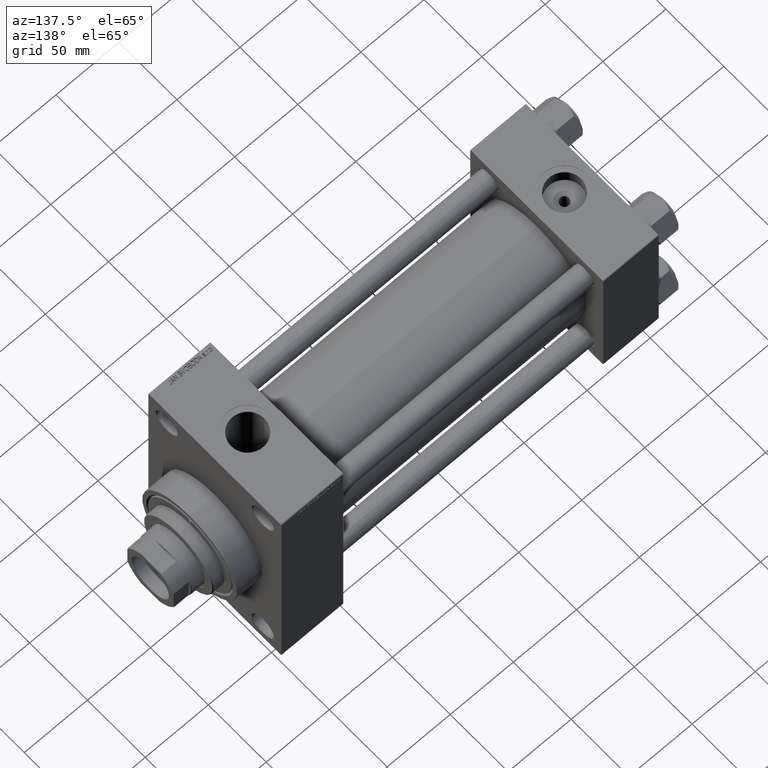
[diagram: clean part render]
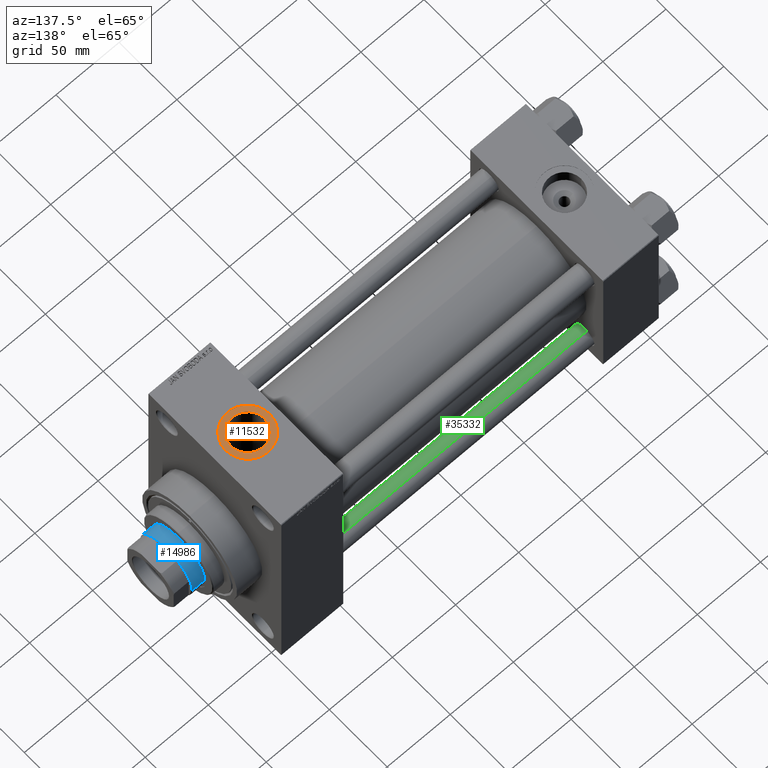
[diagram: same view with three faces highlighted in distinct colors, each labeled with its STEP entity id]
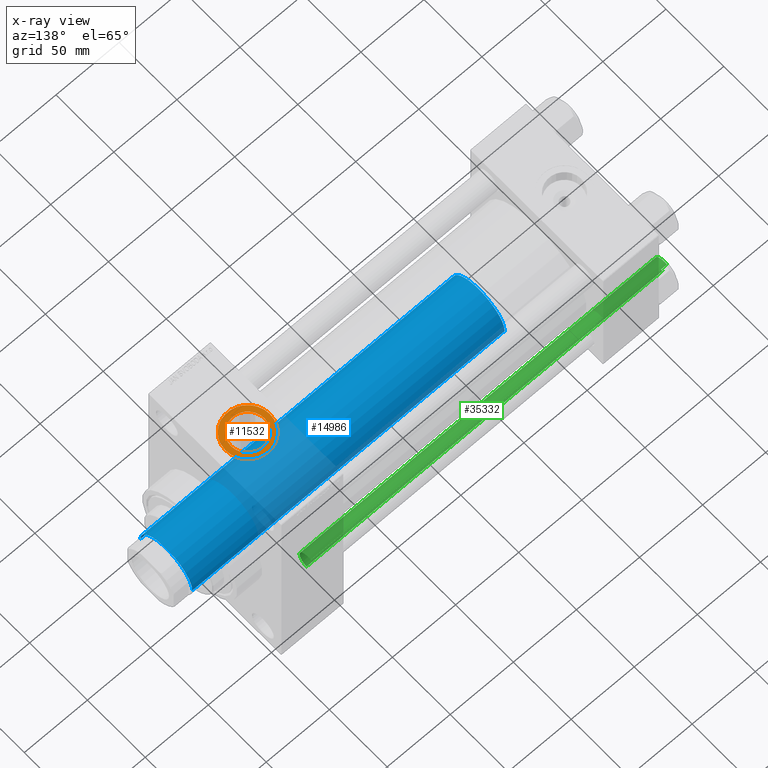
[diagram: x-ray of the same camera — body ghosted, the three highlighted faces saturated]
A machine part, auxiliary view with three faces highlighted in distinct colors.
The next image is the same camera in x-ray (body ghosted, the three faces saturated) — at least one of them is partly hidden behind the body in this view.
Their STEP definitions:

[orange] entity #11532 — the highlighted planar face has unit normal (0, 0, 1).
#292 = EDGE_LOOP ( 'NONE', ( #44141, #22670 ) ) ;
#1193 = CIRCLE ( 'NONE', #29034, 17.50000000000001421 ) ;
#3209 = CIRCLE ( 'NONE', #40320, 17.50000000000001421 ) ;
#7249 = VERTEX_POINT ( 'NONE', #35344 ) ;
#7829 = DIRECTION ( 'NONE',  ( 0.000000000000000000, 0.000000000000000000, 1.000000000000000000 ) ) ;
#9356 = AXIS2_PLACEMENT_3D ( 'NONE', #24749, #35164, #12895 ) ;
#9921 = AXIS2_PLACEMENT_3D ( 'NONE', #40812, #29683, #14652 ) ;
#10519 = CIRCLE ( 'NONE', #16692, 13.22000000000000952 ) ;
#11532 = ADVANCED_FACE ( 'NONE', ( #29446, #18757 ), #30402, .T. ) ;
#12895 = DIRECTION ( 'NONE',  ( 1.000000000000000000, 0.000000000000000000, 0.000000000000000000 ) ) ;
#13533 = CARTESIAN_POINT ( 'NONE',  ( 290.5000000000000568, -1.086087741481131350E-14, 89.79999999999998295 ) ) ;
#14652 = DIRECTION ( 'NONE',  ( 1.000000000000000000, 0.000000000000000000, -0.000000000000000000 ) ) ;
#16692 = AXIS2_PLACEMENT_3D ( 'NONE', #44874, #21879, #43917 ) ;
#18757 = FACE_OUTER_BOUND ( 'NONE', #292, .T. ) ;
#18960 = CARTESIAN_POINT ( 'NONE',  ( 259.7800000000000296, -1.086087741481131350E-14, 89.79999999999998295 ) ) ;
#20953 = DIRECTION ( 'NONE',  ( 0.000000000000000000, 0.000000000000000000, 1.000000000000000000 ) ) ;
#21879 = DIRECTION ( 'NONE',  ( -0.000000000000000000, -0.000000000000000000, -1.000000000000000000 ) ) ;
#22670 = ORIENTED_EDGE ( 'NONE', *, *, #43777, .T. ) ;
#22798 = VERTEX_POINT ( 'NONE', #44673 ) ;
#23872 = EDGE_CURVE ( 'NONE', #38009, #22798, #3209, .T. ) ;
#24749 = CARTESIAN_POINT ( 'NONE',  ( 273.0000000000000000, -1.086087741481131350E-14, 89.79999999999998295 ) ) ;
#25646 = EDGE_CURVE ( 'NONE', #45391, #7249, #30323, .T. ) ;
#27897 = DIRECTION ( 'NONE',  ( 1.000000000000000000, 0.000000000000000000, 0.000000000000000000 ) ) ;
#29034 = AXIS2_PLACEMENT_3D ( 'NONE', #39364, #20953, #38885 ) ;
#29446 = FACE_BOUND ( 'NONE', #38754, .T. ) ;
#29683 = DIRECTION ( 'NONE',  ( 0.000000000000000000, 0.000000000000000000, 1.000000000000000000 ) ) ;
#30323 = CIRCLE ( 'NONE', #9356, 13.22000000000000952 ) ;
#30402 = PLANE ( 'NONE',  #9921 ) ;
#30805 = ORIENTED_EDGE ( 'NONE', *, *, #25646, .T. ) ;
#31098 = ORIENTED_EDGE ( 'NONE', *, *, #37572, .T. ) ;
#35164 = DIRECTION ( 'NONE',  ( -0.000000000000000000, -0.000000000000000000, -1.000000000000000000 ) ) ;
#35344 = CARTESIAN_POINT ( 'NONE',  ( 286.2200000000000273, -9.241894346338516295E-15, 89.79999999999998295 ) ) ;
#37572 = EDGE_CURVE ( 'NONE', #7249, #45391, #10519, .T. ) ;
#38009 = VERTEX_POINT ( 'NONE', #13533 ) ;
#38754 = EDGE_LOOP ( 'NONE', ( #30805, #31098 ) ) ;
#38885 = DIRECTION ( 'NONE',  ( 1.000000000000000000, 0.000000000000000000, 0.000000000000000000 ) ) ;
#39364 = CARTESIAN_POINT ( 'NONE',  ( 273.0000000000000000, -1.086087741481131350E-14, 89.79999999999998295 ) ) ;
#40320 = AXIS2_PLACEMENT_3D ( 'NONE', #40983, #7829, #27897 ) ;
#40812 = CARTESIAN_POINT ( 'NONE',  ( 273.0000000000000000, -1.086087741481131350E-14, 89.79999999999998295 ) ) ;
#40983 = CARTESIAN_POINT ( 'NONE',  ( 273.0000000000000000, -1.086087741481131350E-14, 89.79999999999998295 ) ) ;
#43777 = EDGE_CURVE ( 'NONE', #22798, #38009, #1193, .T. ) ;
#43917 = DIRECTION ( 'NONE',  ( 1.000000000000000000, 0.000000000000000000, 0.000000000000000000 ) ) ;
#44141 = ORIENTED_EDGE ( 'NONE', *, *, #23872, .T. ) ;
#44673 = CARTESIAN_POINT ( 'NONE',  ( 255.5000000000000000, -8.717745516303448410E-15, 89.79999999999998295 ) ) ;
#44874 = CARTESIAN_POINT ( 'NONE',  ( 273.0000000000000000, -1.086087741481131350E-14, 89.79999999999998295 ) ) ;
#45391 = VERTEX_POINT ( 'NONE', #18960 ) ;

[blue] entity #14986 — the highlighted cylindrical surface (partial cylindrical patch) has radius 22.5 mm, axis along (-1, 0, 0).
#1317 = VERTEX_POINT ( 'NONE', #21079 ) ;
#2171 = AXIS2_PLACEMENT_3D ( 'NONE', #8243, #8470, #37524 ) ;
#5895 = AXIS2_PLACEMENT_3D ( 'NONE', #29322, #47700, #25916 ) ;
#8243 = CARTESIAN_POINT ( 'NONE',  ( 0.000000000000000000, 0.000000000000000000, 294.0000000000000000 ) ) ;
#8470 = DIRECTION ( 'NONE',  ( -0.000000000000000000, -0.000000000000000000, -1.000000000000000000 ) ) ;
#9848 = AXIS2_PLACEMENT_3D ( 'NONE', #26882, #45511, #30982 ) ;
#10244 = CARTESIAN_POINT ( 'NONE',  ( -22.50000000000000355, 0.000000000000000000, 294.0000000000000000 ) ) ;
#10737 = EDGE_LOOP ( 'NONE', ( #14143, #46641, #42282, #30050 ) ) ;
#11661 = CARTESIAN_POINT ( 'NONE',  ( 22.50000000000000355, 2.755455298081545172E-15, 294.0000000000000000 ) ) ;
#13244 = VECTOR ( 'NONE', #28426, 1000.000000000000000 ) ;
#13662 = DIRECTION ( 'NONE',  ( -0.000000000000000000, -0.000000000000000000, -1.000000000000000000 ) ) ;
#14143 = ORIENTED_EDGE ( 'NONE', *, *, #38768, .F. ) ;
#14981 = EDGE_CURVE ( 'NONE', #43787, #1317, #30751, .T. ) ;
#14986 = ADVANCED_FACE ( 'NONE', ( #19588 ), #41653, .T. ) ;
#17563 = CARTESIAN_POINT ( 'NONE',  ( -22.50000000000000355, 0.000000000000000000, 46.00000000000000000 ) ) ;
#17734 = LINE ( 'NONE', #10244, #13244 ) ;
#18253 = VECTOR ( 'NONE', #13662, 1000.000000000000000 ) ;
#19588 = FACE_OUTER_BOUND ( 'NONE', #10737, .T. ) ;
#21079 = CARTESIAN_POINT ( 'NONE',  ( 22.50000000000000355, 2.755455298081545172E-15, 46.00000000000000000 ) ) ;
#21184 = CARTESIAN_POINT ( 'NONE',  ( 22.50000000000000355, 2.755455298081545172E-15, 293.4999999999999432 ) ) ;
#22555 = LINE ( 'NONE', #11661, #18253 ) ;
#23758 = EDGE_CURVE ( 'NONE', #28283, #43787, #17734, .T. ) ;
#24027 = CARTESIAN_POINT ( 'NONE',  ( -22.50000000000000355, 0.000000000000000000, 293.4999999999999432 ) ) ;
#25916 = DIRECTION ( 'NONE',  ( 1.000000000000000000, 0.000000000000000000, 0.000000000000000000 ) ) ;
#26882 = CARTESIAN_POINT ( 'NONE',  ( 0.000000000000000000, 0.000000000000000000, 46.00000000000000000 ) ) ;
#28283 = VERTEX_POINT ( 'NONE', #24027 ) ;
#28426 = DIRECTION ( 'NONE',  ( -0.000000000000000000, -0.000000000000000000, -1.000000000000000000 ) ) ;
#29322 = CARTESIAN_POINT ( 'NONE',  ( 0.000000000000000000, 0.000000000000000000, 293.4999999999999432 ) ) ;
#30050 = ORIENTED_EDGE ( 'NONE', *, *, #14981, .T. ) ;
#30597 = CIRCLE ( 'NONE', #5895, 22.50000000000000355 ) ;
#30707 = VERTEX_POINT ( 'NONE', #21184 ) ;
#30751 = CIRCLE ( 'NONE', #9848, 22.50000000000000355 ) ;
#30982 = DIRECTION ( 'NONE',  ( 1.000000000000000000, 0.000000000000000000, 0.000000000000000000 ) ) ;
#37419 = EDGE_CURVE ( 'NONE', #30707, #28283, #30597, .T. ) ;
#37524 = DIRECTION ( 'NONE',  ( -1.000000000000000000, 0.000000000000000000, 0.000000000000000000 ) ) ;
#38768 = EDGE_CURVE ( 'NONE', #30707, #1317, #22555, .T. ) ;
#41653 = CYLINDRICAL_SURFACE ( 'NONE', #2171, 22.50000000000000355 ) ;
#42282 = ORIENTED_EDGE ( 'NONE', *, *, #23758, .T. ) ;
#43787 = VERTEX_POINT ( 'NONE', #17563 ) ;
#45511 = DIRECTION ( 'NONE',  ( 0.000000000000000000, 0.000000000000000000, 1.000000000000000000 ) ) ;
#46641 = ORIENTED_EDGE ( 'NONE', *, *, #37419, .T. ) ;
#47700 = DIRECTION ( 'NONE',  ( 0.000000000000000000, 0.000000000000000000, -1.000000000000000000 ) ) ;

[green] entity #35332 — the highlighted cylindrical surface (edge-blend (fillet) strip) has radius 8 mm, axis along (1, -0, 0).
#1303 = DIRECTION ( 'NONE',  ( 1.000000000000000000, 0.000000000000000000, 0.000000000000000000 ) ) ;
#1760 = CARTESIAN_POINT ( 'NONE',  ( 0.000000000000000000, 0.000000000000000000, 0.5000000000000004441 ) ) ;
#3060 = ORIENTED_EDGE ( 'NONE', *, *, #23012, .T. ) ;
#3442 = AXIS2_PLACEMENT_3D ( 'NONE', #19681, #19441, #41739 ) ;
#3703 = CARTESIAN_POINT ( 'NONE',  ( -8.000000000000000000, 0.000000000000000000, 283.0000000000000000 ) ) ;
#3756 = VERTEX_POINT ( 'NONE', #20468 ) ;
#5061 = ORIENTED_EDGE ( 'NONE', *, *, #35858, .T. ) ;
#6770 = EDGE_CURVE ( 'NONE', #44884, #36688, #24465, .T. ) ;
#7850 = CYLINDRICAL_SURFACE ( 'NONE', #3442, 8.000000000000000000 ) ;
#8294 = VERTEX_POINT ( 'NONE', #16082 ) ;
#9273 = DIRECTION ( 'NONE',  ( -0.000000000000000000, -0.000000000000000000, -1.000000000000000000 ) ) ;
#12439 = ORIENTED_EDGE ( 'NONE', *, *, #6770, .T. ) ;
#13129 = CARTESIAN_POINT ( 'NONE',  ( 8.000000000000000000, 9.797174393178825657E-16, 283.0000000000000000 ) ) ;
#15561 = DIRECTION ( 'NONE',  ( -0.000000000000000000, -0.000000000000000000, 1.000000000000000000 ) ) ;
#16082 = CARTESIAN_POINT ( 'NONE',  ( -8.000000000000000000, 0.000000000000000000, 282.5000000000000000 ) ) ;
#16629 = CIRCLE ( 'NONE', #35940, 8.000000000000000000 ) ;
#19178 = DIRECTION ( 'NONE',  ( -0.000000000000000000, -0.000000000000000000, -1.000000000000000000 ) ) ;
#19441 = DIRECTION ( 'NONE',  ( -0.000000000000000000, -0.000000000000000000, -1.000000000000000000 ) ) ;
#19681 = CARTESIAN_POINT ( 'NONE',  ( 0.000000000000000000, 0.000000000000000000, 283.0000000000000000 ) ) ;
#19924 = FACE_OUTER_BOUND ( 'NONE', #31961, .T. ) ;
#20236 = ORIENTED_EDGE ( 'NONE', *, *, #41434, .F. ) ;
#20468 = CARTESIAN_POINT ( 'NONE',  ( 8.000000000000000000, 9.797174393178825657E-16, 282.5000000000000000 ) ) ;
#21694 = CARTESIAN_POINT ( 'NONE',  ( -8.000000000000000000, 0.000000000000000000, 0.5000000000000004441 ) ) ;
#23012 = EDGE_CURVE ( 'NONE', #8294, #44884, #44845, .T. ) ;
#23979 = DIRECTION ( 'NONE',  ( 0.000000000000000000, 0.000000000000000000, -1.000000000000000000 ) ) ;
#24265 = VECTOR ( 'NONE', #9273, 1000.000000000000000 ) ;
#24465 = CIRCLE ( 'NONE', #45320, 8.000000000000000000 ) ;
#24693 = CARTESIAN_POINT ( 'NONE',  ( 0.000000000000000000, 0.000000000000000000, 282.5000000000000000 ) ) ;
#27863 = CARTESIAN_POINT ( 'NONE',  ( 8.000000000000000000, 9.797174393178825657E-16, 0.5000000000000004441 ) ) ;
#31961 = EDGE_LOOP ( 'NONE', ( #20236, #5061, #3060, #12439 ) ) ;
#35332 = ADVANCED_FACE ( 'NONE', ( #19924 ), #7850, .T. ) ;
#35858 = EDGE_CURVE ( 'NONE', #3756, #8294, #16629, .T. ) ;
#35940 = AXIS2_PLACEMENT_3D ( 'NONE', #24693, #23979, #46713 ) ;
#36688 = VERTEX_POINT ( 'NONE', #27863 ) ;
#39037 = LINE ( 'NONE', #13129, #24265 ) ;
#41434 = EDGE_CURVE ( 'NONE', #3756, #36688, #39037, .T. ) ;
#41739 = DIRECTION ( 'NONE',  ( -1.000000000000000000, 0.000000000000000000, 0.000000000000000000 ) ) ;
#44845 = LINE ( 'NONE', #3703, #46465 ) ;
#44884 = VERTEX_POINT ( 'NONE', #21694 ) ;
#45320 = AXIS2_PLACEMENT_3D ( 'NONE', #1760, #15561, #1303 ) ;
#46465 = VECTOR ( 'NONE', #19178, 1000.000000000000000 ) ;
#46713 = DIRECTION ( 'NONE',  ( 1.000000000000000000, 0.000000000000000000, 0.000000000000000000 ) ) ;